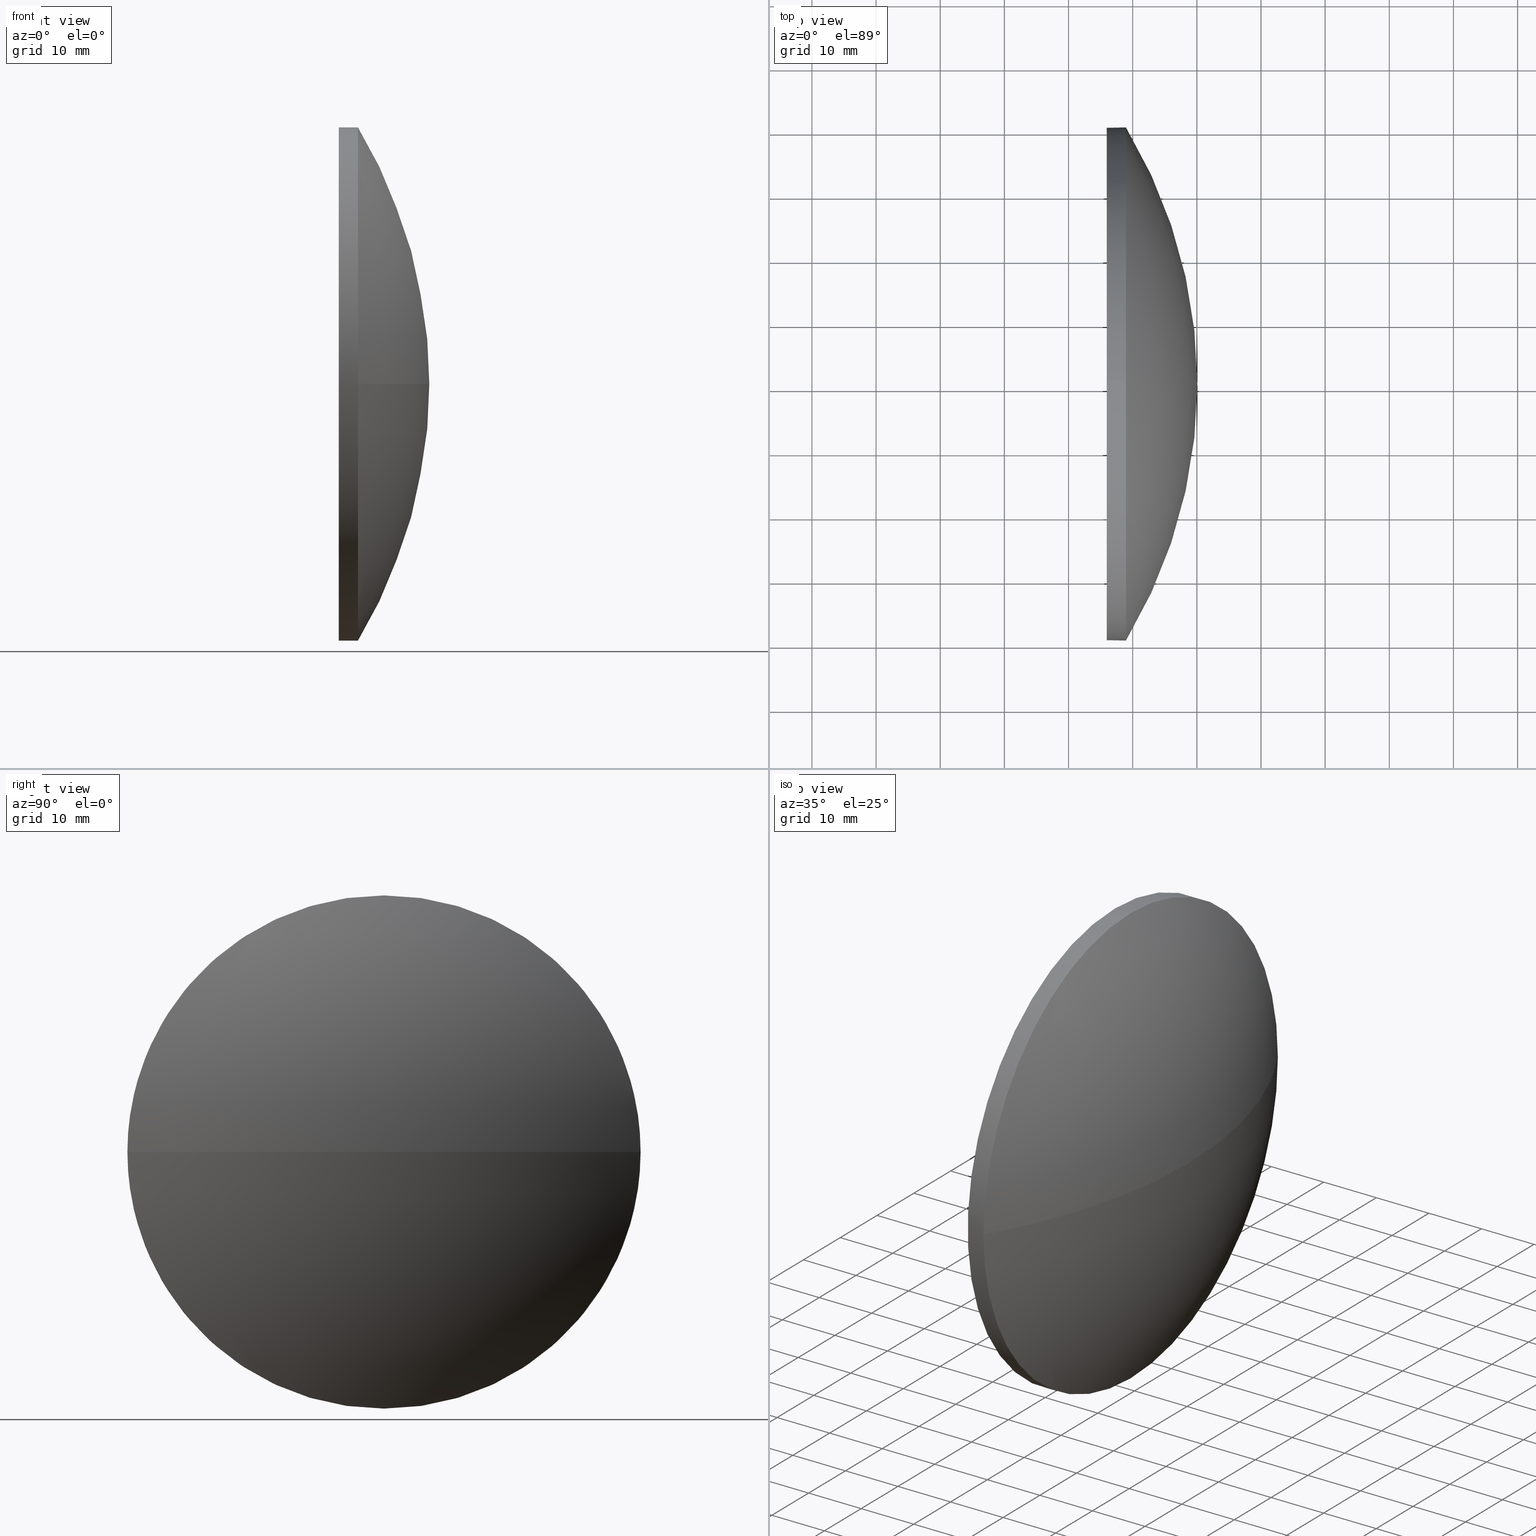
[diagram: canonical four-view strip — front | top / right | iso, engineering-drawing reading convention]
A machine part, canonical four-view strip (front | top / right | iso — engineering-drawing reading convention). The complete STEP part file that produces these views, byte-faithful:
ISO-10303-21;
HEADER;
FILE_DESCRIPTION (( 'STEP AP214' ),
    '1' );
FILE_NAME ('100164.STEP',
    '2019-05-17T02:50:27',
    ( '' ),
    ( '' ),
    'SwSTEP 2.0',
    'SolidWorks 2016',
    '' );
FILE_SCHEMA (( 'AUTOMOTIVE_DESIGN' ));
ENDSEC;

DATA;
#1 = ORIENTED_EDGE ( 'NONE', *, *, #128, .F. ) ;
#2 = DIRECTION ( 'NONE',  ( 0.0000000000000000000, 0.0000000000000000000, 1.000000000000000000 ) ) ;
#3 = COLOUR_RGB ( '',1.000000000000000000, 1.000000000000000000, 1.000000000000000000 ) ;
#4 = ORIENTED_EDGE ( 'NONE', *, *, #186, .T. ) ;
#5 = CARTESIAN_POINT ( 'NONE',  ( 228.9490942240209100, 130.4671098528244200, 0.0000000000000000000 ) ) ;
#6 =( GEOMETRIC_REPRESENTATION_CONTEXT ( 3 ) GLOBAL_UNCERTAINTY_ASSIGNED_CONTEXT ( ( #170 ) ) GLOBAL_UNIT_ASSIGNED_CONTEXT ( ( #147, #161, #133 ) ) REPRESENTATION_CONTEXT ( 'NONE', 'WORKASPACE' ) );
#7 = PLANE ( 'NONE',  #159 ) ;
#8 = PRESENTATION_LAYER_ASSIGNMENT (  '', '', ( #95 ) ) ;
#9 = STYLED_ITEM ( 'NONE', ( #57 ), #115 ) ;
#10 = ORIENTED_EDGE ( 'NONE', *, *, #186, .F. ) ;
#11 = CARTESIAN_POINT ( 'NONE',  ( 217.9945825323866300, 130.4671098528244200, 0.0000000000000000000 ) ) ;
#12 = CARTESIAN_POINT ( 'NONE',  ( 162.5666481808554500, 130.4671098528244200, 0.0000000000000000000 ) ) ;
#13 = AXIS2_PLACEMENT_3D ( 'NONE', #48, #47, #123 ) ;
#14 = DIRECTION ( 'NONE',  ( 0.0000000000000000000, 1.224646799147353200E-016, -1.000000000000000000 ) ) ;
#15 = DIRECTION ( 'NONE',  ( 0.0000000000000000000, 0.0000000000000000000, -1.000000000000000000 ) ) ;
#16 = DIRECTION ( 'NONE',  ( 1.000000000000000000, 0.0000000000000000000, 0.0000000000000000000 ) ) ;
#17 =( NAMED_UNIT ( * ) PLANE_ANGLE_UNIT ( ) SI_UNIT ( $, .RADIAN. ) );
#18 = ORIENTED_EDGE ( 'NONE', *, *, #169, .T. ) ;
#19 = LINE ( 'NONE', #180, #172 ) ;
#20 = ORIENTED_EDGE ( 'NONE', *, *, #35, .T. ) ;
#21 = UNCERTAINTY_MEASURE_WITH_UNIT (LENGTH_MEASURE( 1.000000000000000100E-005 ), #154, 'distance_accuracy_value', 'NONE');
#22 =( GEOMETRIC_REPRESENTATION_CONTEXT ( 3 ) GLOBAL_UNCERTAINTY_ASSIGNED_CONTEXT ( ( #21 ) ) GLOBAL_UNIT_ASSIGNED_CONTEXT ( ( #154, #17, #166 ) ) REPRESENTATION_CONTEXT ( 'NONE', 'WORKASPACE' ) );
#23 = CYLINDRICAL_SURFACE ( 'NONE', #39, 40.00000000000000700 ) ;
#24 = DIRECTION ( 'NONE',  ( 0.0000000000000000000, 0.0000000000000000000, 1.000000000000000000 ) ) ;
#25 = CARTESIAN_POINT ( 'NONE',  ( 228.9490942240209100, 130.4671098528244200, -40.00000000000000700 ) ) ;
#26 = AXIS2_PLACEMENT_3D ( 'NONE', #138, #83, #124 ) ;
#27 = CARTESIAN_POINT ( 'NONE',  ( 228.9490942240209100, 90.46710985282442200, -4.898587196589411400E-015 ) ) ;
#28 = SURFACE_SIDE_STYLE ('',( #143 ) ) ;
#29 = CYLINDRICAL_SURFACE ( 'NONE', #68, 40.00000000000000700 ) ;
#30 = AXIS2_PLACEMENT_3D ( 'NONE', #12, #75, #119 ) ;
#31 = CARTESIAN_POINT ( 'NONE',  ( 225.9490942240209100, 130.4671098528244200, 0.0000000000000000000 ) ) ;
#32 = DIRECTION ( 'NONE',  ( 0.0000000000000000000, 0.0000000000000000000, 1.000000000000000000 ) ) ;
#33 = SPHERICAL_SURFACE ( 'NONE', #30, 77.50244604316544900 ) ;
#34 = ORIENTED_EDGE ( 'NONE', *, *, #58, .F. ) ;
#35 = EDGE_CURVE ( 'NONE', #125, #157, #36, .T. ) ;
#36 = CIRCLE ( 'NONE', #148, 40.00000000000000700 ) ;
#37 = AXIS2_PLACEMENT_3D ( 'NONE', #155, #162, #45 ) ;
#38 = SURFACE_STYLE_FILL_AREA ( #160 ) ;
#39 = AXIS2_PLACEMENT_3D ( 'NONE', #78, #175, #94 ) ;
#40 = CARTESIAN_POINT ( 'NONE',  ( 228.9490942240209100, 130.4671098528244200, 0.0000000000000000000 ) ) ;
#41 = EDGE_CURVE ( 'NONE', #84, #105, #168, .T. ) ;
#42 =( LENGTH_UNIT ( ) NAMED_UNIT ( * ) SI_UNIT ( .MILLI., .METRE. ) );
#43 = MANIFOLD_SOLID_BREP ( '��ת1', #80 ) ;
#44 = DIRECTION ( 'NONE',  ( 0.0000000000000000000, 0.0000000000000000000, 1.000000000000000000 ) ) ;
#45 = DIRECTION ( 'NONE',  ( 0.0000000000000000000, 0.0000000000000000000, 1.000000000000000000 ) ) ;
#46 = FACE_OUTER_BOUND ( 'NONE', #101, .T. ) ;
#47 = DIRECTION ( 'NONE',  ( -0.0000000000000000000, 0.0000000000000000000, 1.000000000000000000 ) ) ;
#48 = CARTESIAN_POINT ( 'NONE',  ( 162.5666481808554500, 130.4671098528244200, 0.0000000000000000000 ) ) ;
#49 = MECHANICAL_DESIGN_GEOMETRIC_PRESENTATION_REPRESENTATION (  '', ( #9 ), #165 ) ;
#50 = ORIENTED_EDGE ( 'NONE', *, *, #140, .F. ) ;
#51 = CIRCLE ( 'NONE', #37, 40.00000000000000700 ) ;
#52 = CARTESIAN_POINT ( 'NONE',  ( 225.9490942240209100, 130.4671098528244200, -40.00000000000000700 ) ) ;
#53 = AXIS2_PLACEMENT_3D ( 'NONE', #176, #76, #2 ) ;
#54 = ORIENTED_EDGE ( 'NONE', *, *, #169, .F. ) ;
#55 = DIRECTION ( 'NONE',  ( -1.000000000000000000, -0.0000000000000000000, -0.0000000000000000000 ) ) ;
#56 = SURFACE_SIDE_STYLE ('',( #38 ) ) ;
#57 = PRESENTATION_STYLE_ASSIGNMENT (( #135 ) ) ;
#58 = EDGE_CURVE ( 'NONE', #174, #72, #71, .T. ) ;
#59 = FILL_AREA_STYLE_COLOUR ( '', #3 ) ;
#60 = FACE_OUTER_BOUND ( 'NONE', #91, .T. ) ;
#61 = ORIENTED_EDGE ( 'NONE', *, *, #41, .F. ) ;
#62 = APPLICATION_CONTEXT ( 'automotive_design' ) ;
#63 = DIRECTION ( 'NONE',  ( -1.000000000000000000, -0.0000000000000000000, -0.0000000000000000000 ) ) ;
#64 = DIRECTION ( 'NONE',  ( -1.000000000000000000, -0.0000000000000000000, -0.0000000000000000000 ) ) ;
#65 = ADVANCED_FACE ( 'NONE', ( #109 ), #33, .T. ) ;
#66 = UNCERTAINTY_MEASURE_WITH_UNIT (LENGTH_MEASURE( 1.000000000000000100E-005 ), #42, 'distance_accuracy_value', 'NONE');
#67 = FACE_OUTER_BOUND ( 'NONE', #100, .T. ) ;
#68 = AXIS2_PLACEMENT_3D ( 'NONE', #11, #55, #178 ) ;
#69 = PRODUCT_DEFINITION_CONTEXT ( 'detailed design', #150, 'design' ) ;
#70 = ORIENTED_EDGE ( 'NONE', *, *, #35, .F. ) ;
#71 = CIRCLE ( 'NONE', #86, 77.50244604316544900 ) ;
#72 = VERTEX_POINT ( 'NONE', #27 ) ;
#73 = CIRCLE ( 'NONE', #13, 77.50244604316544900 ) ;
#74 = MECHANICAL_DESIGN_GEOMETRIC_PRESENTATION_REPRESENTATION (  '', ( #95 ), #6 ) ;
#75 = DIRECTION ( 'NONE',  ( -0.0000000000000000000, 0.0000000000000000000, -1.000000000000000000 ) ) ;
#76 = DIRECTION ( 'NONE',  ( -1.000000000000000000, -0.0000000000000000000, -0.0000000000000000000 ) ) ;
#77 = CARTESIAN_POINT ( 'NONE',  ( 162.5666481808554500, 130.4671098528244200, 0.0000000000000000000 ) ) ;
#78 = CARTESIAN_POINT ( 'NONE',  ( 217.9945825323866300, 130.4671098528244200, 0.0000000000000000000 ) ) ;
#79 = AXIS2_PLACEMENT_3D ( 'NONE', #31, #181, #110 ) ;
#80 = CLOSED_SHELL ( 'NONE', ( #81, #112, #65, #108, #184 ) ) ;
#81 = ADVANCED_FACE ( 'NONE', ( #46 ), #29, .T. ) ;
#82 = DIRECTION ( 'NONE',  ( -1.000000000000000000, -0.0000000000000000000, -0.0000000000000000000 ) ) ;
#83 = DIRECTION ( 'NONE',  ( -0.0000000000000000000, 0.0000000000000000000, -1.000000000000000000 ) ) ;
#84 = VERTEX_POINT ( 'NONE', #52 ) ;
#85 = ORIENTED_EDGE ( 'NONE', *, *, #58, .T. ) ;
#86 = AXIS2_PLACEMENT_3D ( 'NONE', #77, #14, #145 ) ;
#87 = ORIENTED_EDGE ( 'NONE', *, *, #142, .T. ) ;
#88 = PRODUCT ( '100164', '100164', '', ( #121 ) ) ;
#89 = ORIENTED_EDGE ( 'NONE', *, *, #41, .T. ) ;
#90 = VERTEX_POINT ( 'NONE', #25 ) ;
#91 = EDGE_LOOP ( 'NONE', ( #132, #18, #177, #129, #61 ) ) ;
#92 = DIRECTION ( 'NONE',  ( -1.000000000000000000, -0.0000000000000000000, -0.0000000000000000000 ) ) ;
#93 = PRODUCT_DEFINITION_SHAPE ( 'NONE', 'NONE',  #116 ) ;
#94 = DIRECTION ( 'NONE',  ( 0.0000000000000000000, 0.0000000000000000000, 1.000000000000000000 ) ) ;
#95 = STYLED_ITEM ( 'NONE', ( #171 ), #43 ) ;
#96 = ORIENTED_EDGE ( 'NONE', *, *, #142, .F. ) ;
#97 = CARTESIAN_POINT ( 'NONE',  ( 228.9490942240209100, 130.4671098528244200, 40.00000000000000700 ) ) ;
#98 = DIRECTION ( 'NONE',  ( -1.000000000000000000, -0.0000000000000000000, -0.0000000000000000000 ) ) ;
#99 = CARTESIAN_POINT ( 'NONE',  ( 240.0690942240208900, 130.4671098528244200, 0.0000000000000000000 ) ) ;
#100 = EDGE_LOOP ( 'NONE', ( #87, #89 ) ) ;
#101 = EDGE_LOOP ( 'NONE', ( #4, #103, #96, #1, #20 ) ) ;
#102 = CIRCLE ( 'NONE', #126, 40.00000000000000700 ) ;
#103 = ORIENTED_EDGE ( 'NONE', *, *, #158, .T. ) ;
#104 = LINE ( 'NONE', #182, #113 ) ;
#105 = VERTEX_POINT ( 'NONE', #106 ) ;
#106 = CARTESIAN_POINT ( 'NONE',  ( 225.9490942240209100, 130.4671098528244200, 40.00000000000000700 ) ) ;
#107 = CARTESIAN_POINT ( 'NONE',  ( 0.0000000000000000000, 0.0000000000000000000, 0.0000000000000000000 ) ) ;
#108 = ADVANCED_FACE ( 'NONE', ( #60 ), #23, .T. ) ;
#109 = FACE_OUTER_BOUND ( 'NONE', #141, .T. ) ;
#110 = DIRECTION ( 'NONE',  ( 0.0000000000000000000, 0.0000000000000000000, 1.000000000000000000 ) ) ;
#111 = CARTESIAN_POINT ( 'NONE',  ( 228.9490942240209100, 130.4671098528244200, 0.0000000000000000000 ) ) ;
#112 = ADVANCED_FACE ( 'NONE', ( #139 ), #179, .T. ) ;
#113 = VECTOR ( 'NONE', #63, 1000.000000000000000 ) ;
#114 = PRODUCT_RELATED_PRODUCT_CATEGORY ( 'part', '', ( #88 ) ) ;
#115 = ADVANCED_BREP_SHAPE_REPRESENTATION ( '100164', ( #43, #173 ), #22 ) ;
#116 = PRODUCT_DEFINITION ( 'δ֪', '', #127, #69 ) ;
#117 = SURFACE_STYLE_USAGE ( .BOTH. , #56 ) ;
#118 = ORIENTED_EDGE ( 'NONE', *, *, #140, .T. ) ;
#119 = DIRECTION ( 'NONE',  ( 0.0000000000000000000, 1.000000000000000000, 0.0000000000000000000 ) ) ;
#120 = EDGE_LOOP ( 'NONE', ( #50, #85, #54, #10 ) ) ;
#121 = PRODUCT_CONTEXT ( 'NONE', #62, 'mechanical' ) ;
#122 = FILL_AREA_STYLE ('',( #59 ) ) ;
#123 = DIRECTION ( 'NONE',  ( 1.000000000000000000, 0.0000000000000000000, 0.0000000000000000000 ) ) ;
#124 = DIRECTION ( 'NONE',  ( 0.0000000000000000000, 1.000000000000000000, 0.0000000000000000000 ) ) ;
#125 = VERTEX_POINT ( 'NONE', #97 ) ;
#126 = AXIS2_PLACEMENT_3D ( 'NONE', #5, #82, #167 ) ;
#127 = PRODUCT_DEFINITION_FORMATION_WITH_SPECIFIED_SOURCE ( '�κ�', '', #88, .NOT_KNOWN. ) ;
#128 = EDGE_CURVE ( 'NONE', #125, #105, #104, .T. ) ;
#129 = ORIENTED_EDGE ( 'NONE', *, *, #128, .T. ) ;
#130 = COLOUR_RGB ( '',1.000000000000000000, 1.000000000000000000, 1.000000000000000000 ) ;
#131 = EDGE_CURVE ( 'NONE', #72, #125, #51, .T. ) ;
#132 = ORIENTED_EDGE ( 'NONE', *, *, #158, .F. ) ;
#133 =( NAMED_UNIT ( * ) SI_UNIT ( $, .STERADIAN. ) SOLID_ANGLE_UNIT ( ) );
#134 = CIRCLE ( 'NONE', #151, 40.00000000000000700 ) ;
#135 = SURFACE_STYLE_USAGE ( .BOTH. , #28 ) ;
#136 = CARTESIAN_POINT ( 'NONE',  ( 225.9490942240209100, 130.4671098528244200, 0.0000000000000000000 ) ) ;
#137 = DIRECTION ( 'NONE',  ( 1.000000000000000000, 0.0000000000000000000, 0.0000000000000000000 ) ) ;
#138 = CARTESIAN_POINT ( 'NONE',  ( 162.5666481808554500, 130.4671098528244200, 0.0000000000000000000 ) ) ;
#139 = FACE_OUTER_BOUND ( 'NONE', #120, .T. ) ;
#140 = EDGE_CURVE ( 'NONE', #174, #157, #73, .T. ) ;
#141 = EDGE_LOOP ( 'NONE', ( #34, #118, #70, #156 ) ) ;
#142 = EDGE_CURVE ( 'NONE', #105, #84, #185, .T. ) ;
#143 = SURFACE_STYLE_FILL_AREA ( #122 ) ;
#144 = PRESENTATION_LAYER_ASSIGNMENT (  '', '', ( #9 ) ) ;
#145 = DIRECTION ( 'NONE',  ( 0.0000000000000000000, 1.000000000000000000, 1.224646799147353200E-016 ) ) ;
#146 = FILL_AREA_STYLE_COLOUR ( '', #130 ) ;
#147 =( LENGTH_UNIT ( ) NAMED_UNIT ( * ) SI_UNIT ( .MILLI., .METRE. ) );
#148 = AXIS2_PLACEMENT_3D ( 'NONE', #40, #92, #24 ) ;
#149 =( NAMED_UNIT ( * ) PLANE_ANGLE_UNIT ( ) SI_UNIT ( $, .RADIAN. ) );
#150 = APPLICATION_CONTEXT ( 'automotive_design' ) ;
#151 = AXIS2_PLACEMENT_3D ( 'NONE', #111, #98, #44 ) ;
#152 = SHAPE_DEFINITION_REPRESENTATION ( #93, #115 ) ;
#153 = APPLICATION_PROTOCOL_DEFINITION ( 'draft international standard', 'automotive_design', 1998, #62 ) ;
#154 =( LENGTH_UNIT ( ) NAMED_UNIT ( * ) SI_UNIT ( .MILLI., .METRE. ) );
#155 = CARTESIAN_POINT ( 'NONE',  ( 228.9490942240209100, 130.4671098528244200, 0.0000000000000000000 ) ) ;
#156 = ORIENTED_EDGE ( 'NONE', *, *, #131, .F. ) ;
#157 = VERTEX_POINT ( 'NONE', #183 ) ;
#158 = EDGE_CURVE ( 'NONE', #90, #84, #19, .T. ) ;
#159 = AXIS2_PLACEMENT_3D ( 'NONE', #136, #16, #15 ) ;
#160 = FILL_AREA_STYLE ('',( #146 ) ) ;
#161 =( NAMED_UNIT ( * ) PLANE_ANGLE_UNIT ( ) SI_UNIT ( $, .RADIAN. ) );
#162 = DIRECTION ( 'NONE',  ( -1.000000000000000000, -0.0000000000000000000, -0.0000000000000000000 ) ) ;
#163 =( NAMED_UNIT ( * ) SI_UNIT ( $, .STERADIAN. ) SOLID_ANGLE_UNIT ( ) );
#164 = APPLICATION_PROTOCOL_DEFINITION ( 'draft international standard', 'automotive_design', 1998, #150 ) ;
#165 =( GEOMETRIC_REPRESENTATION_CONTEXT ( 3 ) GLOBAL_UNCERTAINTY_ASSIGNED_CONTEXT ( ( #66 ) ) GLOBAL_UNIT_ASSIGNED_CONTEXT ( ( #42, #149, #163 ) ) REPRESENTATION_CONTEXT ( 'NONE', 'WORKASPACE' ) );
#166 =( NAMED_UNIT ( * ) SI_UNIT ( $, .STERADIAN. ) SOLID_ANGLE_UNIT ( ) );
#167 = DIRECTION ( 'NONE',  ( 0.0000000000000000000, 0.0000000000000000000, 1.000000000000000000 ) ) ;
#168 = CIRCLE ( 'NONE', #53, 40.00000000000000700 ) ;
#169 = EDGE_CURVE ( 'NONE', #90, #72, #102, .T. ) ;
#170 = UNCERTAINTY_MEASURE_WITH_UNIT (LENGTH_MEASURE( 1.000000000000000100E-005 ), #147, 'distance_accuracy_value', 'NONE');
#171 = PRESENTATION_STYLE_ASSIGNMENT (( #117 ) ) ;
#172 = VECTOR ( 'NONE', #64, 1000.000000000000000 ) ;
#173 = AXIS2_PLACEMENT_3D ( 'NONE', #107, #32, #137 ) ;
#174 = VERTEX_POINT ( 'NONE', #99 ) ;
#175 = DIRECTION ( 'NONE',  ( -1.000000000000000000, -0.0000000000000000000, -0.0000000000000000000 ) ) ;
#176 = CARTESIAN_POINT ( 'NONE',  ( 225.9490942240209100, 130.4671098528244200, 0.0000000000000000000 ) ) ;
#177 = ORIENTED_EDGE ( 'NONE', *, *, #131, .T. ) ;
#178 = DIRECTION ( 'NONE',  ( 0.0000000000000000000, 0.0000000000000000000, 1.000000000000000000 ) ) ;
#179 = SPHERICAL_SURFACE ( 'NONE', #26, 77.50244604316544900 ) ;
#180 = CARTESIAN_POINT ( 'NONE',  ( 217.9945825323866300, 130.4671098528244200, -40.00000000000000700 ) ) ;
#181 = DIRECTION ( 'NONE',  ( -1.000000000000000000, -0.0000000000000000000, -0.0000000000000000000 ) ) ;
#182 = CARTESIAN_POINT ( 'NONE',  ( 217.9945825323866300, 130.4671098528244200, 40.00000000000000700 ) ) ;
#183 = CARTESIAN_POINT ( 'NONE',  ( 228.9490942240209100, 170.4671098528244200, 0.0000000000000000000 ) ) ;
#184 = ADVANCED_FACE ( 'NONE', ( #67 ), #7, .F. ) ;
#185 = CIRCLE ( 'NONE', #79, 40.00000000000000700 ) ;
#186 = EDGE_CURVE ( 'NONE', #157, #90, #134, .T. ) ;
ENDSEC;
END-ISO-10303-21;
